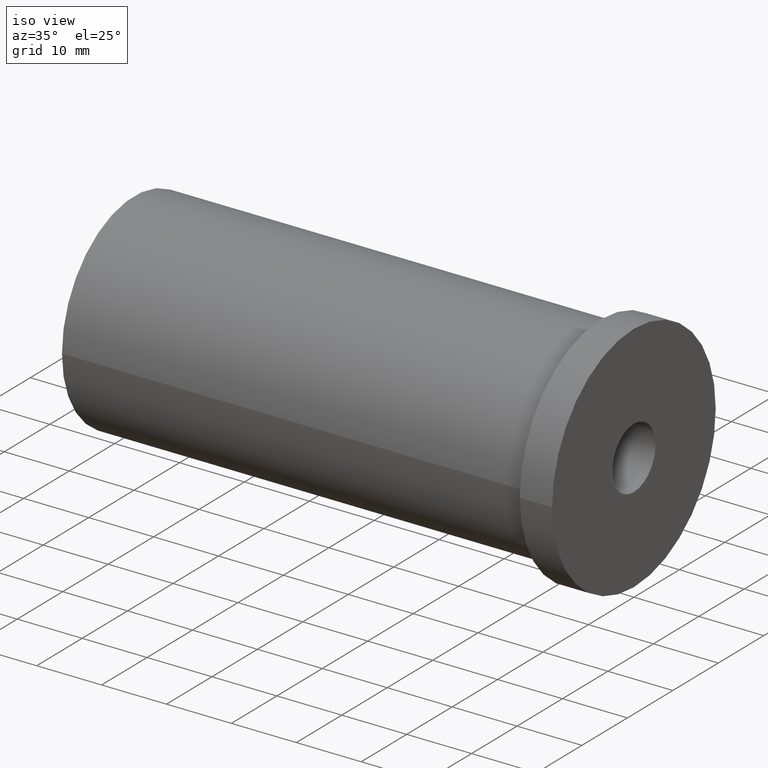
[diagram: clean part render]
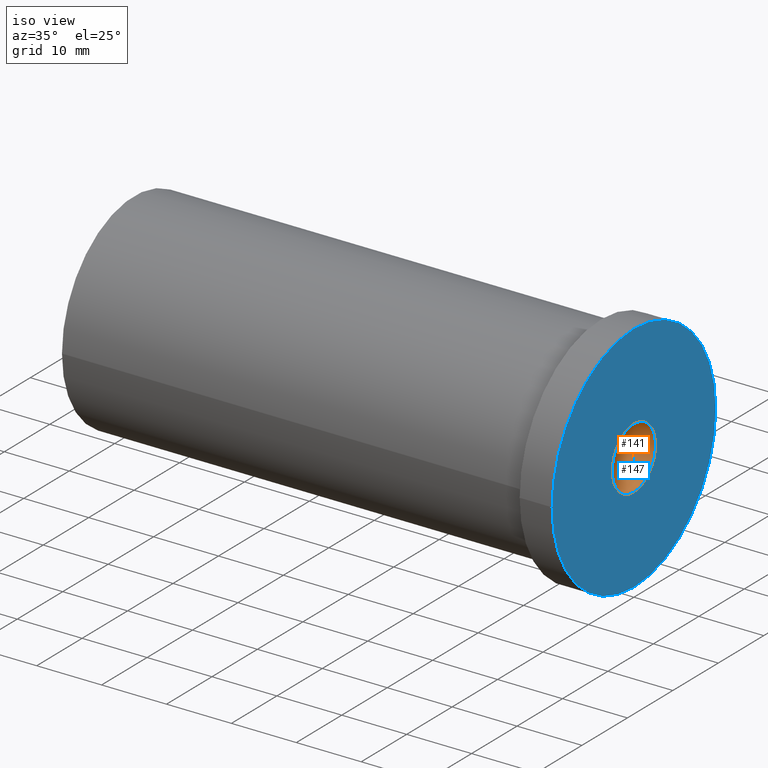
[diagram: same view with the hole feature highlighted: cylindrical wall and planar end face, labeled with their STEP entity ids]
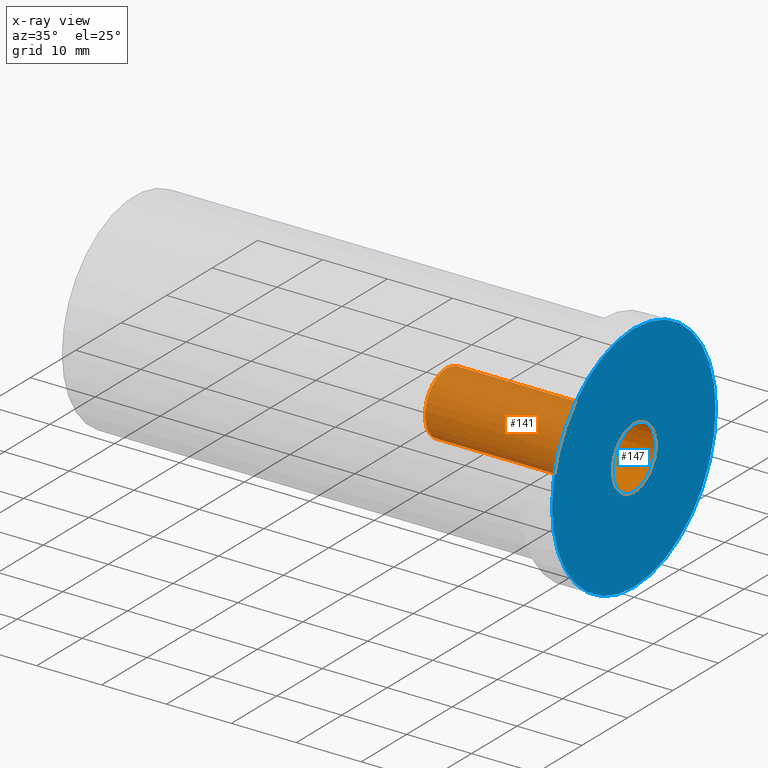
[diagram: x-ray of the same camera — body ghosted, the hole faces saturated]
A machine part, iso view. The highlighted faces form one hole feature of diameter 9.525 mm: the cylindrical wall (entity #141, orange) and its adjacent planar end face (entity #147, blue) — they share a circular edge in the B-rep.
The next image is the same camera in x-ray (body ghosted, the hole faces saturated) — the bore reads through the body.
Wall:
#23=FACE_OUTER_BOUND('',#33,.T.);
#33=EDGE_LOOP('',(#100,#101,#102,#103,#104));
#46=LINE('',#251,#53);
#53=VECTOR('',#201,4.7625);
#60=CIRCLE('',#175,4.7625);
#61=CIRCLE('',#176,4.7625);
#62=CIRCLE('',#177,4.7625);
#71=VERTEX_POINT('',#248);
#72=VERTEX_POINT('',#250);
#73=VERTEX_POINT('',#252);
#82=EDGE_CURVE('',#71,#71,#60,.T.);
#83=EDGE_CURVE('',#71,#72,#46,.T.);
#84=EDGE_CURVE('',#73,#72,#61,.T.);
#85=EDGE_CURVE('',#72,#73,#62,.T.);
#100=ORIENTED_EDGE('',*,*,#82,.F.);
#101=ORIENTED_EDGE('',*,*,#83,.T.);
#102=ORIENTED_EDGE('',*,*,#84,.F.);
#103=ORIENTED_EDGE('',*,*,#85,.F.);
#104=ORIENTED_EDGE('',*,*,#83,.F.);
#136=CYLINDRICAL_SURFACE('',#174,4.7625);
#141=ADVANCED_FACE('',(#23),#136,.F.);
#174=AXIS2_PLACEMENT_3D('',#247,#197,#198);
#175=AXIS2_PLACEMENT_3D('',#249,#199,#200);
#176=AXIS2_PLACEMENT_3D('',#253,#202,#203);
#177=AXIS2_PLACEMENT_3D('',#254,#204,#205);
#197=DIRECTION('center_axis',(1.,0.,0.));
#198=DIRECTION('ref_axis',(0.,0.,-1.));
#199=DIRECTION('center_axis',(-1.,0.,0.));
#200=DIRECTION('ref_axis',(0.,0.,-1.));
#201=DIRECTION('',(-1.,0.,0.));
#202=DIRECTION('center_axis',(1.,0.,0.));
#203=DIRECTION('ref_axis',(0.,0.,-1.));
#204=DIRECTION('center_axis',(1.,0.,0.));
#205=DIRECTION('ref_axis',(0.,0.,-1.));
#247=CARTESIAN_POINT('Origin',(-92.3092628071528,0.,0.));
#248=CARTESIAN_POINT('',(0.,-5.83238038093927E-16,4.7625));
#249=CARTESIAN_POINT('Origin',(0.,0.,0.));
#250=CARTESIAN_POINT('',(-28.8529925078431,-5.83238038093927E-16,4.7625));
#251=CARTESIAN_POINT('',(-92.3092628071528,-5.83238038093927E-16,4.7625));
#252=CARTESIAN_POINT('',(-28.8529925078431,-5.83238038093927E-16,-4.7625));
#253=CARTESIAN_POINT('Origin',(-28.8529925078431,0.,0.));
#254=CARTESIAN_POINT('Origin',(-28.8529925078431,0.,0.));
End face:
#15=FACE_BOUND('',#40,.T.);
#18=PLANE('',#189);
#29=FACE_OUTER_BOUND('',#39,.T.);
#39=EDGE_LOOP('',(#126));
#40=EDGE_LOOP('',(#127));
#60=CIRCLE('',#175,4.7625);
#67=CIRCLE('',#187,18.);
#71=VERTEX_POINT('',#248);
#78=VERTEX_POINT('',#272);
#82=EDGE_CURVE('',#71,#71,#60,.T.);
#94=EDGE_CURVE('',#78,#78,#67,.T.);
#126=ORIENTED_EDGE('',*,*,#94,.T.);
#127=ORIENTED_EDGE('',*,*,#82,.T.);
#147=ADVANCED_FACE('',(#29,#15),#18,.T.);
#175=AXIS2_PLACEMENT_3D('',#249,#199,#200);
#187=AXIS2_PLACEMENT_3D('',#273,#228,#229);
#189=AXIS2_PLACEMENT_3D('',#277,#233,#234);
#199=DIRECTION('center_axis',(-1.,0.,0.));
#200=DIRECTION('ref_axis',(0.,0.,-1.));
#228=DIRECTION('center_axis',(1.,0.,0.));
#229=DIRECTION('ref_axis',(0.,0.,-1.));
#233=DIRECTION('center_axis',(1.,0.,0.));
#234=DIRECTION('ref_axis',(0.,0.,-1.));
#248=CARTESIAN_POINT('',(0.,-5.83238038093927E-16,4.7625));
#249=CARTESIAN_POINT('Origin',(0.,0.,0.));
#272=CARTESIAN_POINT('',(5.55111512312578E-15,-18.,-2.20436423846524E-15));
#273=CARTESIAN_POINT('Origin',(5.55111512312578E-15,0.,0.));
#277=CARTESIAN_POINT('Origin',(1.24504562061398E-31,2.26081779560032E-14,
0.));